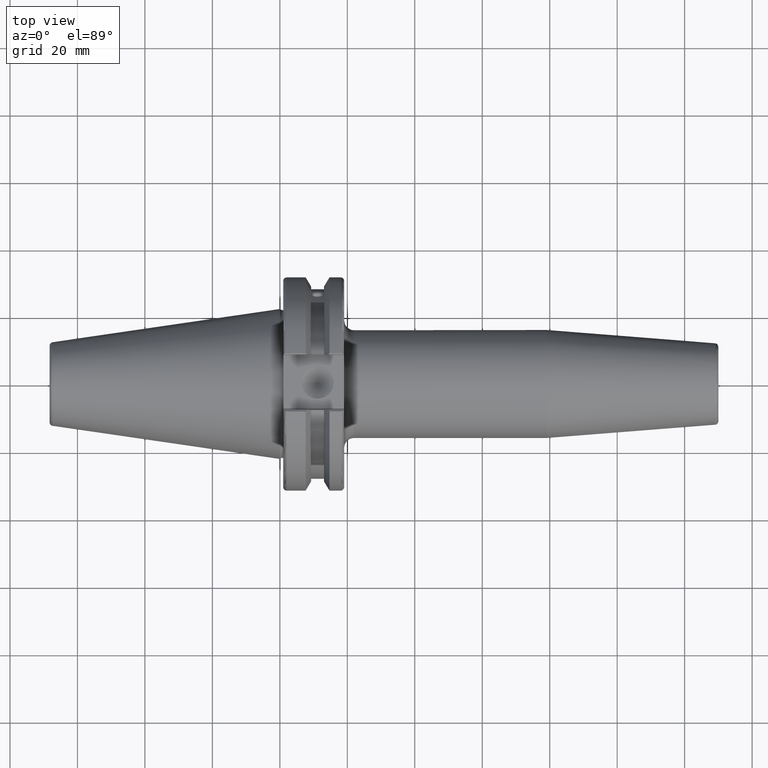
[diagram: clean part render]
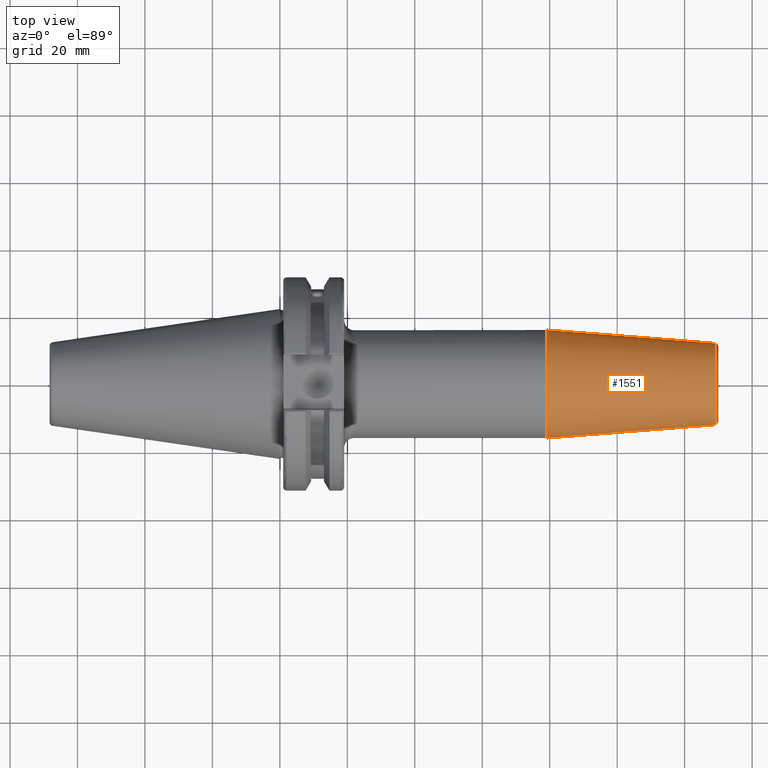
[diagram: same view with one face highlighted and labeled with its STEP entity id]
A machine part, top view. The second image highlights one B-rep face of the part: STEP entity #1551.
In plain terms, the highlighted conical surface has half-angle 4.5 deg.
Its self-contained STEP definition (entity closure, byte-faithful):
#182=FACE_OUTER_BOUND('',#273,.T.);
#273=EDGE_LOOP('',(#1068,#1069,#1070,#1071,#1072));
#381=LINE('',#2347,#479);
#479=VECTOR('',#1880,14.);
#577=CIRCLE('',#1671,12.0725268420749);
#578=CIRCLE('',#1672,12.0725268420749);
#579=CIRCLE('',#1674,16.);
#655=VERTEX_POINT('',#2340);
#656=VERTEX_POINT('',#2342);
#657=VERTEX_POINT('',#2346);
#818=EDGE_CURVE('',#655,#656,#577,.T.);
#819=EDGE_CURVE('',#656,#655,#578,.T.);
#820=EDGE_CURVE('',#656,#657,#381,.T.);
#821=EDGE_CURVE('',#657,#657,#579,.T.);
#1068=ORIENTED_EDGE('',*,*,#819,.F.);
#1069=ORIENTED_EDGE('',*,*,#820,.T.);
#1070=ORIENTED_EDGE('',*,*,#821,.T.);
#1071=ORIENTED_EDGE('',*,*,#820,.F.);
#1072=ORIENTED_EDGE('',*,*,#818,.F.);
#1533=CONICAL_SURFACE('',#1673,14.,0.0785398163397448);
#1551=ADVANCED_FACE('',(#182),#1533,.T.);
#1671=AXIS2_PLACEMENT_3D('',#2343,#1874,#1875);
#1672=AXIS2_PLACEMENT_3D('',#2344,#1876,#1877);
#1673=AXIS2_PLACEMENT_3D('',#2345,#1878,#1879);
#1674=AXIS2_PLACEMENT_3D('',#2348,#1881,#1882);
#1874=DIRECTION('center_axis',(1.,0.,0.));
#1875=DIRECTION('ref_axis',(0.,-1.,3.06161699786838E-17));
#1876=DIRECTION('center_axis',(1.,0.,0.));
#1877=DIRECTION('ref_axis',(0.,-1.,3.06161699786838E-17));
#1878=DIRECTION('center_axis',(-1.,0.,0.));
#1879=DIRECTION('ref_axis',(0.,1.,0.));
#1880=DIRECTION('',(-0.996917333733128,-0.078459095727845,-9.60846804471011E-18));
#1881=DIRECTION('center_axis',(1.,0.,0.));
#1882=DIRECTION('ref_axis',(0.,0.,-1.));
#2340=CARTESIAN_POINT('',(129.078459095728,-1.47845813547676E-15,12.0725268420749));
#2342=CARTESIAN_POINT('',(129.078459095728,-12.0725268420749,-1.47845813547676E-15));
#2343=CARTESIAN_POINT('Origin',(129.078459095728,0.,-1.84807266934594E-15));
#2344=CARTESIAN_POINT('Origin',(129.078459095728,0.,-1.84807266934594E-15));
#2345=CARTESIAN_POINT('Origin',(104.587590527651,0.,0.));
#2346=CARTESIAN_POINT('',(79.1751810553012,-16.,-1.95943487863577E-15));
#2347=CARTESIAN_POINT('',(104.587590527651,-14.,-1.71450551880629E-15));
#2348=CARTESIAN_POINT('Origin',(79.1751810553012,0.,0.));